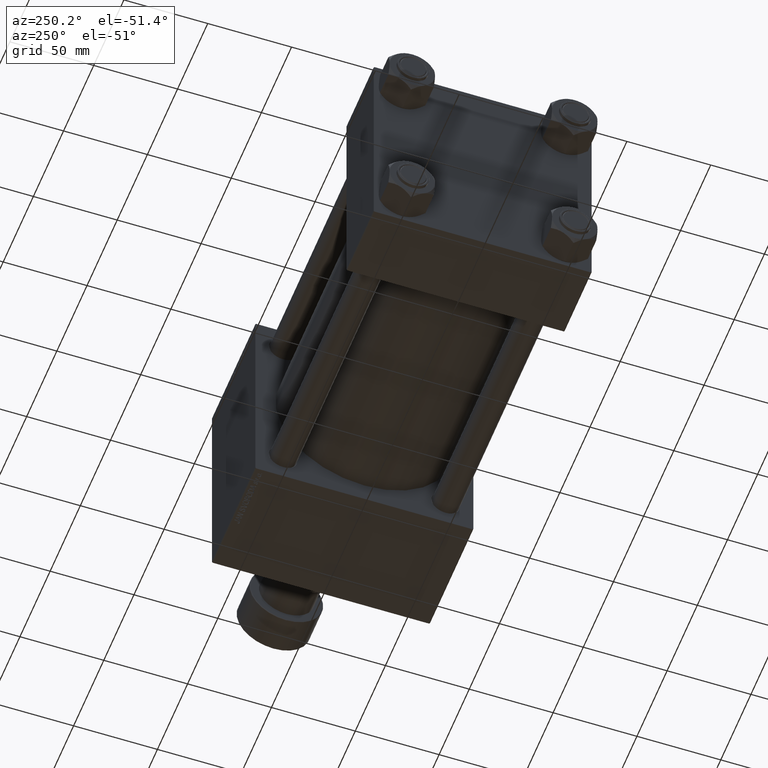
[diagram: clean part render]
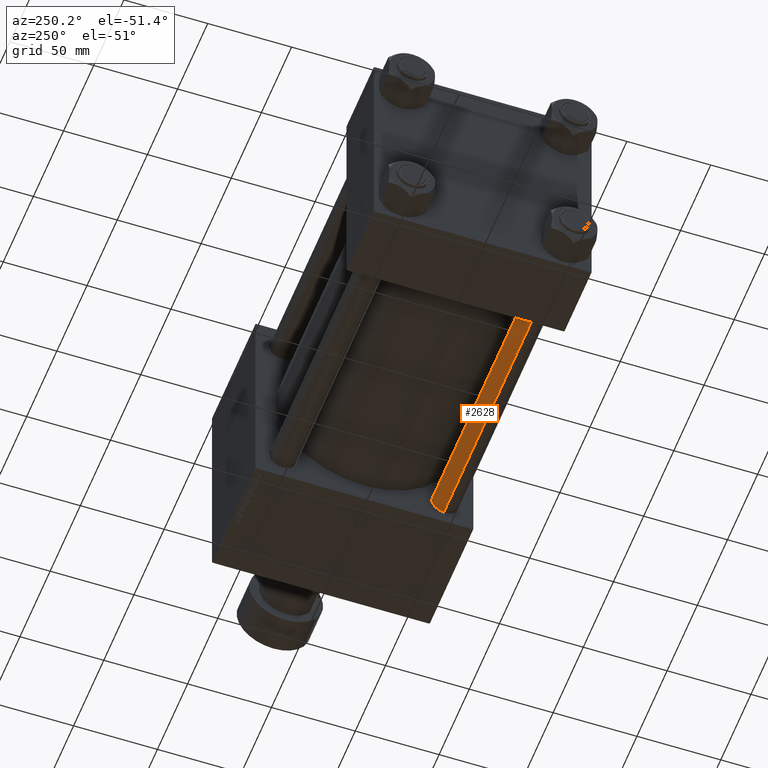
[diagram: same view with one face highlighted and labeled with its STEP entity id]
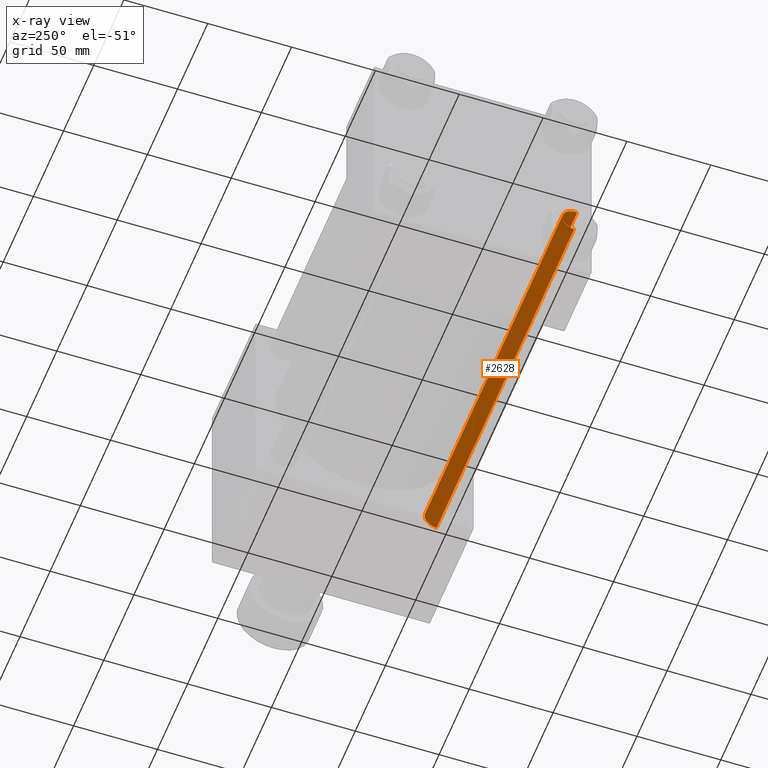
[diagram: x-ray of the same camera — body ghosted, the highlighted face saturated]
A machine part, auxiliary view. The second image highlights one B-rep face of the part: STEP entity #2628.
The next image is the same camera in x-ray: the body ghosted, the highlighted face saturated — about 0% of this face is hidden behind the body in this view.
In plain terms, the highlighted cylindrical surface (edge-blend (fillet) strip) has radius 8 mm, axis along (-1, -0, -0).
Its self-contained STEP definition (entity closure, byte-faithful):
#2628 = ADVANCED_FACE ( 'NONE', ( #30787 ), #3656, .T. ) ;
#2634 = DIRECTION ( 'NONE',  ( -0.000000000000000000, -0.000000000000000000, -1.000000000000000000 ) ) ;
#3449 = AXIS2_PLACEMENT_3D ( 'NONE', #46811, #10419, #49939 ) ;
#3656 = CYLINDRICAL_SURFACE ( 'NONE', #3449, 8.000000000000000000 ) ;
#4570 = DIRECTION ( 'NONE',  ( -0.000000000000000000, -0.000000000000000000, -1.000000000000000000 ) ) ;
#5720 = ORIENTED_EDGE ( 'NONE', *, *, #31635, .F. ) ;
#9562 = ORIENTED_EDGE ( 'NONE', *, *, #13773, .T. ) ;
#10419 = DIRECTION ( 'NONE',  ( -0.000000000000000000, -0.000000000000000000, -1.000000000000000000 ) ) ;
#13773 = EDGE_CURVE ( 'NONE', #41749, #18610, #36978, .T. ) ;
#15993 = CARTESIAN_POINT ( 'NONE',  ( 0.000000000000000000, 0.000000000000000000, 0.5000000000001392220 ) ) ;
#16776 = CIRCLE ( 'NONE', #27497, 8.000000000000000000 ) ;
#18211 = ORIENTED_EDGE ( 'NONE', *, *, #42347, .T. ) ;
#18610 = VERTEX_POINT ( 'NONE', #36200 ) ;
#20515 = CARTESIAN_POINT ( 'NONE',  ( -8.000000000000000000, 0.000000000000000000, 228.5000000000000853 ) ) ;
#21074 = DIRECTION ( 'NONE',  ( -0.000000000000000000, -0.000000000000000000, 1.000000000000000000 ) ) ;
#22143 = AXIS2_PLACEMENT_3D ( 'NONE', #15993, #21074, #28829 ) ;
#24185 = LINE ( 'NONE', #39959, #30341 ) ;
#26131 = LINE ( 'NONE', #41904, #50544 ) ;
#26885 = VERTEX_POINT ( 'NONE', #44128 ) ;
#27473 = EDGE_LOOP ( 'NONE', ( #5720, #44354, #18211, #9562 ) ) ;
#27497 = AXIS2_PLACEMENT_3D ( 'NONE', #41159, #34181, #46067 ) ;
#28829 = DIRECTION ( 'NONE',  ( 1.000000000000000000, 0.000000000000000000, 0.000000000000000000 ) ) ;
#30341 = VECTOR ( 'NONE', #4570, 1000.000000000000000 ) ;
#30787 = FACE_OUTER_BOUND ( 'NONE', #27473, .T. ) ;
#31635 = EDGE_CURVE ( 'NONE', #26885, #18610, #26131, .T. ) ;
#33596 = EDGE_CURVE ( 'NONE', #26885, #36343, #16776, .T. ) ;
#34181 = DIRECTION ( 'NONE',  ( 0.000000000000000000, 0.000000000000000000, -1.000000000000000000 ) ) ;
#36200 = CARTESIAN_POINT ( 'NONE',  ( 8.000000000000000000, 9.797174393178823685E-16, 0.5000000000001392220 ) ) ;
#36269 = CARTESIAN_POINT ( 'NONE',  ( -8.000000000000000000, 0.000000000000000000, 0.5000000000001392220 ) ) ;
#36343 = VERTEX_POINT ( 'NONE', #20515 ) ;
#36978 = CIRCLE ( 'NONE', #22143, 8.000000000000000000 ) ;
#39959 = CARTESIAN_POINT ( 'NONE',  ( -8.000000000000000000, 0.000000000000000000, 229.0000000000000000 ) ) ;
#41159 = CARTESIAN_POINT ( 'NONE',  ( 0.000000000000000000, 0.000000000000000000, 228.5000000000000853 ) ) ;
#41749 = VERTEX_POINT ( 'NONE', #36269 ) ;
#41904 = CARTESIAN_POINT ( 'NONE',  ( 8.000000000000000000, 9.797174393178823685E-16, 229.0000000000000000 ) ) ;
#42347 = EDGE_CURVE ( 'NONE', #36343, #41749, #24185, .T. ) ;
#44128 = CARTESIAN_POINT ( 'NONE',  ( 8.000000000000000000, 9.797174393178823685E-16, 228.5000000000000853 ) ) ;
#44354 = ORIENTED_EDGE ( 'NONE', *, *, #33596, .T. ) ;
#46067 = DIRECTION ( 'NONE',  ( 1.000000000000000000, 0.000000000000000000, 0.000000000000000000 ) ) ;
#46811 = CARTESIAN_POINT ( 'NONE',  ( 0.000000000000000000, 0.000000000000000000, 229.0000000000000000 ) ) ;
#49939 = DIRECTION ( 'NONE',  ( -1.000000000000000000, 0.000000000000000000, 0.000000000000000000 ) ) ;
#50544 = VECTOR ( 'NONE', #2634, 1000.000000000000000 ) ;